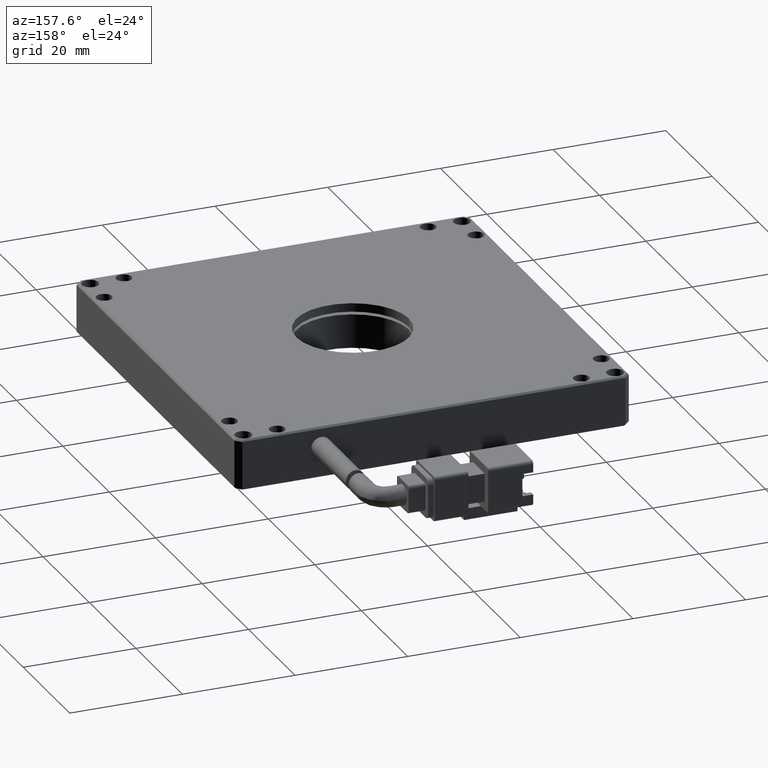
[diagram: clean part render]
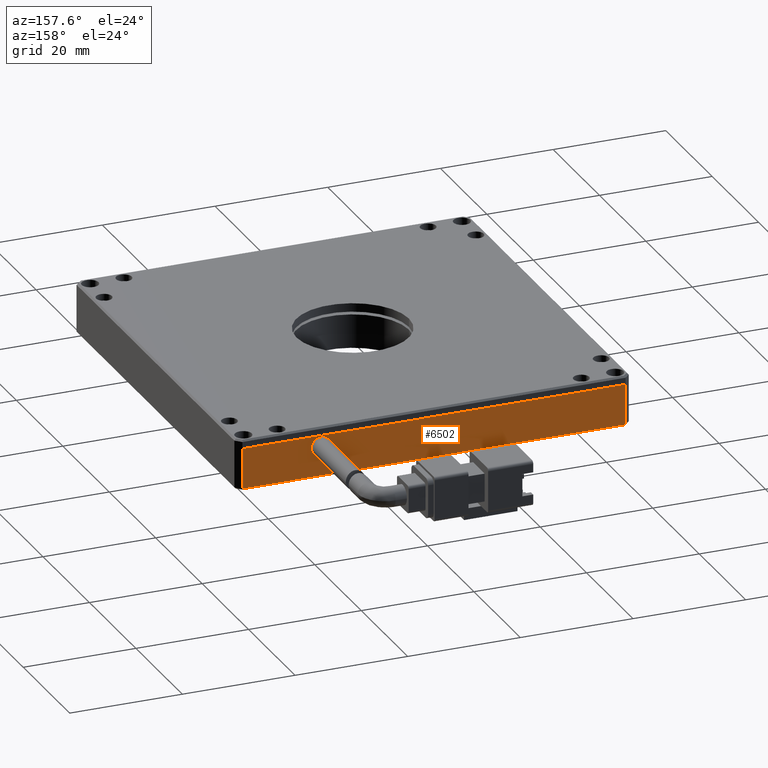
[diagram: same view with one face highlighted and labeled with its STEP entity id]
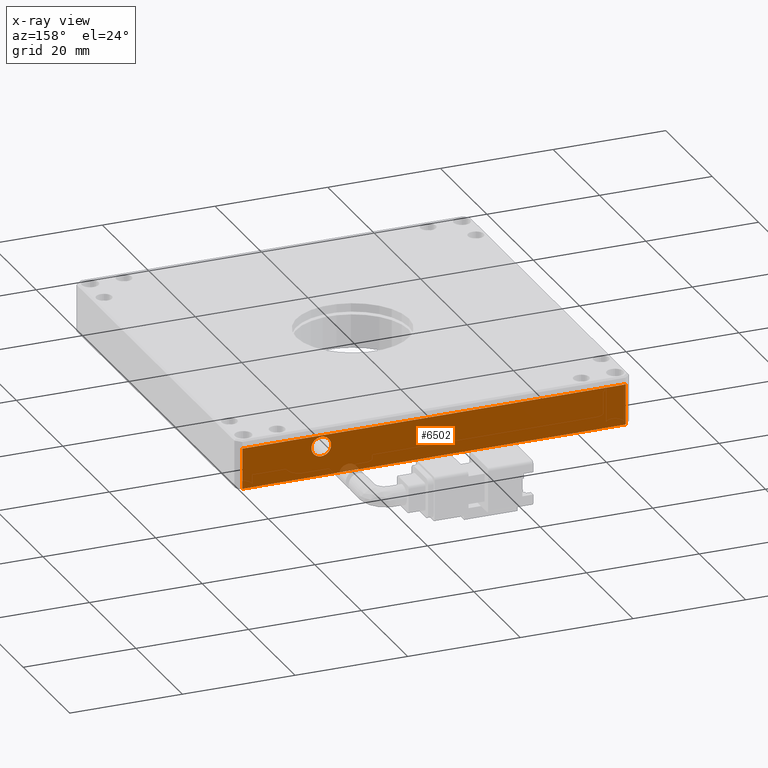
[diagram: x-ray of the same camera — body ghosted, the highlighted face saturated]
A machine part, auxiliary view. The second image highlights one B-rep face of the part: STEP entity #6502.
The next image is the same camera in x-ray: the body ghosted, the highlighted face saturated — about 1% of this face is hidden behind the body in this view.
In plain terms, the highlighted planar face has unit normal (0, -1, 0).
Its self-contained STEP definition (entity closure, byte-faithful):
#95 = AXIS2_PLACEMENT_3D ( 'NONE', #14378, #13022, #7852 ) ;
#101 = ORIENTED_EDGE ( 'NONE', *, *, #19142, .F. ) ;
#170 = DIRECTION ( 'NONE',  ( -0.0000000000000000000, 1.000000000000000000, -0.0000000000000000000 ) ) ;
#450 = ORIENTED_EDGE ( 'NONE', *, *, #7963, .T. ) ;
#2174 = VECTOR ( 'NONE', #4921, 1000.000000000000000 ) ;
#2505 = CARTESIAN_POINT ( 'NONE',  ( 21.53369289340101400, 72.53591370558376600, 4.500000000000000000 ) ) ;
#3024 = ORIENTED_EDGE ( 'NONE', *, *, #9874, .F. ) ;
#3379 = DIRECTION ( 'NONE',  ( 0.0000000000000000000, 0.0000000000000000000, 1.000000000000000000 ) ) ;
#3850 = EDGE_LOOP ( 'NONE', ( #3024, #101 ) ) ;
#4427 = CARTESIAN_POINT ( 'NONE',  ( -46.46630710659901800, 72.53591370558376600, -2.700000000000035700 ) ) ;
#4587 = EDGE_CURVE ( 'NONE', #20762, #18430, #5792, .T. ) ;
#4921 = DIRECTION ( 'NONE',  ( 0.0000000000000000000, -0.0000000000000000000, -1.000000000000000000 ) ) ;
#4990 = CARTESIAN_POINT ( 'NONE',  ( -46.46630710659901800, 72.53591370558376600, 4.500000000000000000 ) ) ;
#5792 = LINE ( 'NONE', #4990, #2174 ) ;
#6105 = VERTEX_POINT ( 'NONE', #13041 ) ;
#6341 = ORIENTED_EDGE ( 'NONE', *, *, #16681, .F. ) ;
#6362 = CARTESIAN_POINT ( 'NONE',  ( -47.46630710659900400, 72.53591370558376600, 4.500000000000000000 ) ) ;
#6502 = ADVANCED_FACE ( 'NONE', ( #9435, #11495 ), #17628, .F. ) ;
#7852 = DIRECTION ( 'NONE',  ( 0.0000000000000000000, -0.0000000000000000000, -1.000000000000000000 ) ) ;
#7963 = EDGE_CURVE ( 'NONE', #20762, #9107, #18577, .T. ) ;
#8245 = DIRECTION ( 'NONE',  ( -0.0000000000000000000, 1.000000000000000000, -0.0000000000000000000 ) ) ;
#8687 = VERTEX_POINT ( 'NONE', #19425 ) ;
#9107 = VERTEX_POINT ( 'NONE', #13643 ) ;
#9205 = DIRECTION ( 'NONE',  ( 1.000000000000000000, -0.0000000000000000000, 0.0000000000000000000 ) ) ;
#9435 = FACE_OUTER_BOUND ( 'NONE', #16864, .T. ) ;
#9759 = LINE ( 'NONE', #10910, #12073 ) ;
#9818 = VECTOR ( 'NONE', #9934, 1000.000000000000000 ) ;
#9874 = EDGE_CURVE ( 'NONE', #8687, #13754, #15840, .T. ) ;
#9934 = DIRECTION ( 'NONE',  ( 1.000000000000000000, -0.0000000000000000000, 0.0000000000000000000 ) ) ;
#9958 = CARTESIAN_POINT ( 'NONE',  ( 7.533692893401000600, 72.53591370558376600, 2.499999999999999600 ) ) ;
#10229 = AXIS2_PLACEMENT_3D ( 'NONE', #21263, #8245, #18162 ) ;
#10910 = CARTESIAN_POINT ( 'NONE',  ( -47.46630710659900400, 72.53591370558376600, -2.700000000000033000 ) ) ;
#11171 = ORIENTED_EDGE ( 'NONE', *, *, #4587, .F. ) ;
#11495 = FACE_BOUND ( 'NONE', #3850, .T. ) ;
#11813 = AXIS2_PLACEMENT_3D ( 'NONE', #9958, #170, #3379 ) ;
#12073 = VECTOR ( 'NONE', #9205, 1000.000000000000000 ) ;
#13022 = DIRECTION ( 'NONE',  ( 0.0000000000000000000, -1.000000000000000000, 0.0000000000000000000 ) ) ;
#13041 = CARTESIAN_POINT ( 'NONE',  ( 21.53369289340101400, 72.53591370558376600, -2.700000000000034400 ) ) ;
#13126 = CIRCLE ( 'NONE', #10229, 1.749999999999998000 ) ;
#13392 = EDGE_CURVE ( 'NONE', #6105, #9107, #20138, .T. ) ;
#13643 = CARTESIAN_POINT ( 'NONE',  ( 21.53369289340101400, 72.53591370558376600, 4.500000000000000000 ) ) ;
#13754 = VERTEX_POINT ( 'NONE', #17137 ) ;
#14378 = CARTESIAN_POINT ( 'NONE',  ( -47.46630710659900400, 72.53591370558376600, 4.500000000000000000 ) ) ;
#15840 = CIRCLE ( 'NONE', #11813, 1.749999999999998000 ) ;
#16306 = CARTESIAN_POINT ( 'NONE',  ( -46.46630710659901800, 72.53591370558376600, 4.500000000000000000 ) ) ;
#16520 = VECTOR ( 'NONE', #19108, 1000.000000000000000 ) ;
#16681 = EDGE_CURVE ( 'NONE', #18430, #6105, #9759, .T. ) ;
#16864 = EDGE_LOOP ( 'NONE', ( #6341, #11171, #450, #17687 ) ) ;
#17137 = CARTESIAN_POINT ( 'NONE',  ( 7.533692893401000600, 72.53591370558376600, 0.7500000000000015500 ) ) ;
#17628 = PLANE ( 'NONE',  #95 ) ;
#17687 = ORIENTED_EDGE ( 'NONE', *, *, #13392, .F. ) ;
#18162 = DIRECTION ( 'NONE',  ( 0.0000000000000000000, 0.0000000000000000000, 1.000000000000000000 ) ) ;
#18430 = VERTEX_POINT ( 'NONE', #4427 ) ;
#18577 = LINE ( 'NONE', #6362, #9818 ) ;
#19108 = DIRECTION ( 'NONE',  ( -0.0000000000000000000, 0.0000000000000000000, 1.000000000000000000 ) ) ;
#19142 = EDGE_CURVE ( 'NONE', #13754, #8687, #13126, .T. ) ;
#19425 = CARTESIAN_POINT ( 'NONE',  ( 7.533692893401000600, 72.53591370558376600, 4.249999999999997300 ) ) ;
#20138 = LINE ( 'NONE', #2505, #16520 ) ;
#20762 = VERTEX_POINT ( 'NONE', #16306 ) ;
#21263 = CARTESIAN_POINT ( 'NONE',  ( 7.533692893401000600, 72.53591370558376600, 2.499999999999999600 ) ) ;